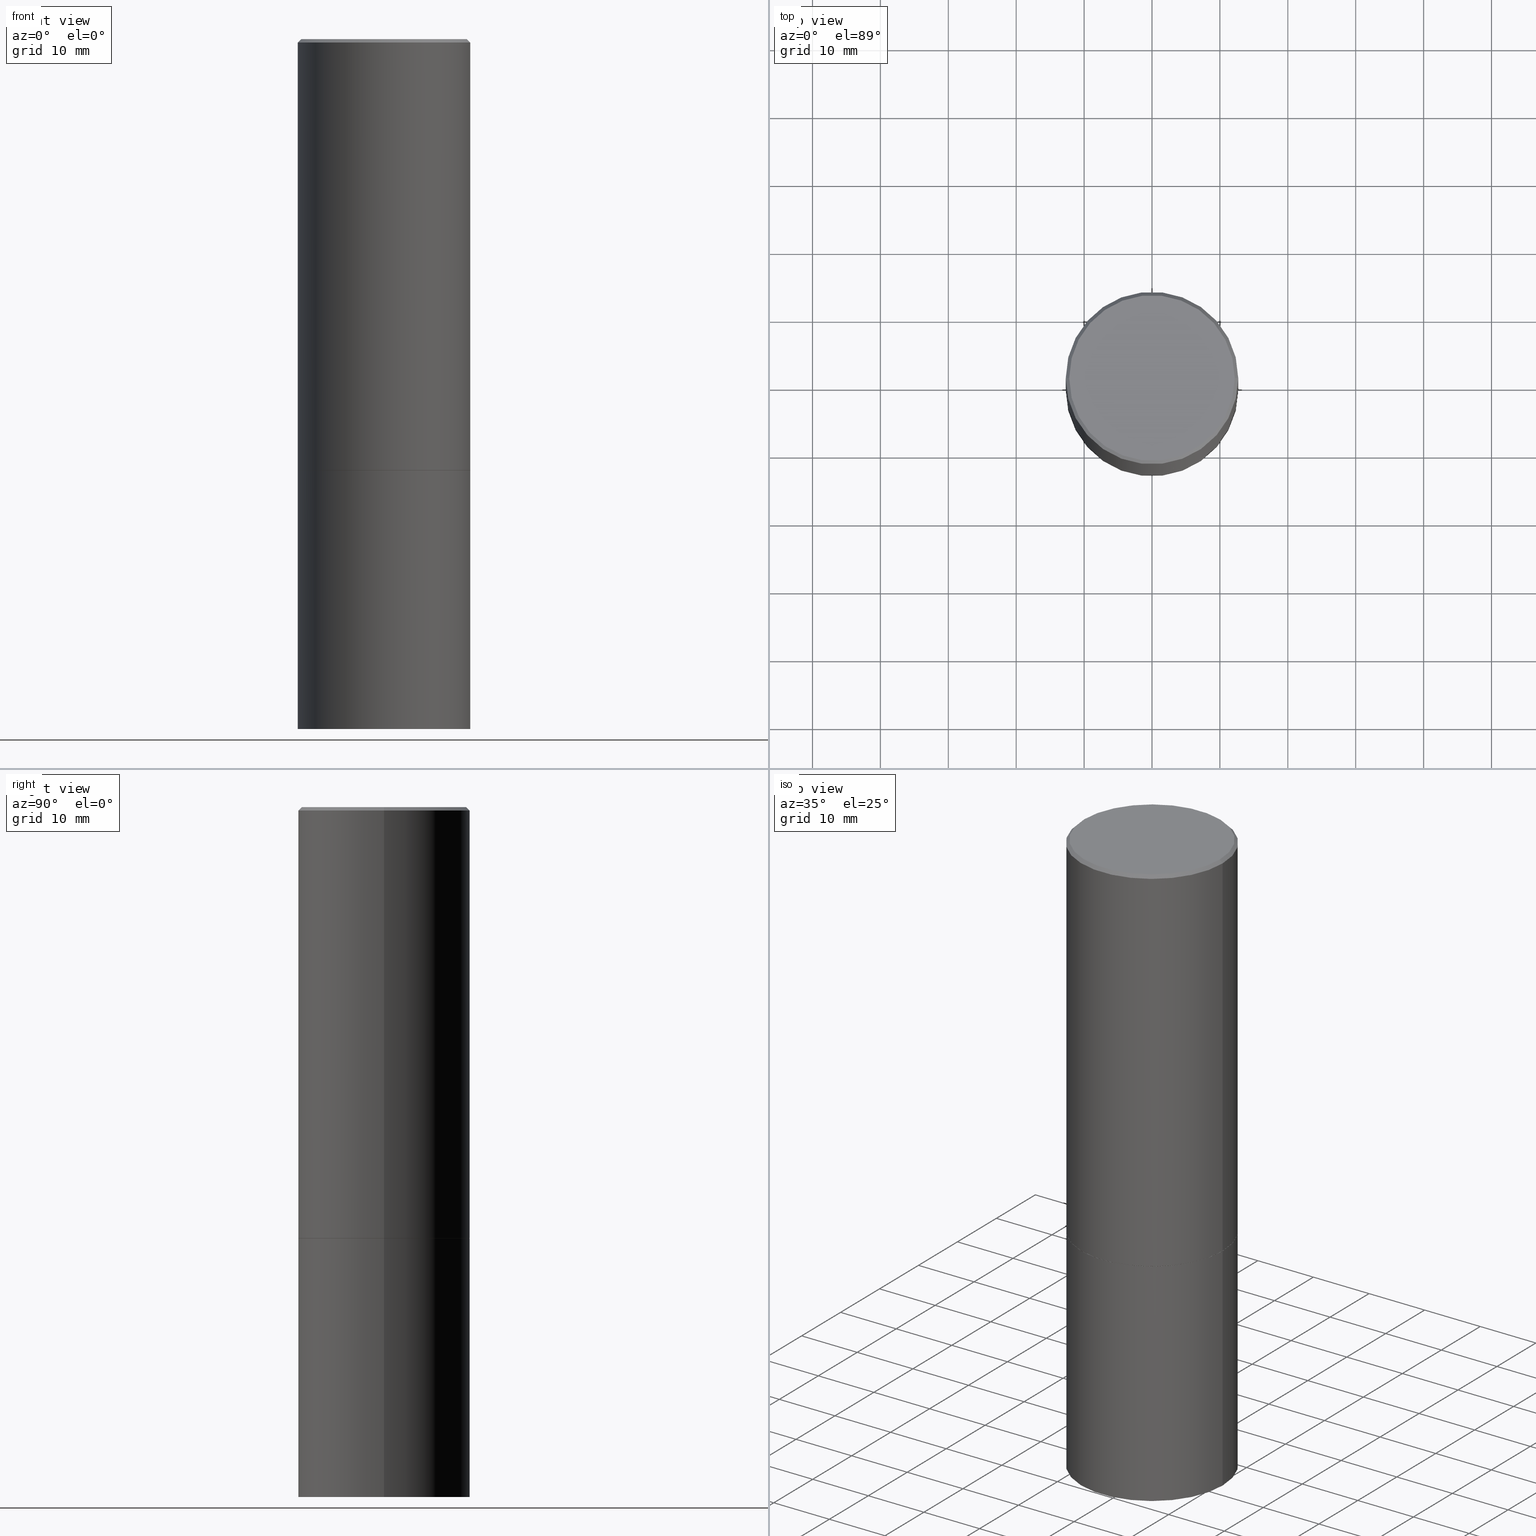
[diagram: canonical four-view strip — front | top / right | iso, engineering-drawing reading convention]
A machine part, canonical four-view strip (front | top / right | iso — engineering-drawing reading convention). The complete STEP part file that produces these views, byte-faithful:
ISO-10303-21;
HEADER;
FILE_DESCRIPTION (( 'STEP AP203' ),
    '1' );
FILE_NAME ('35297.STEP',
    '2024-02-27T18:29:03',
    ( '' ),
    ( '' ),
    'SwSTEP 2.0',
    'SolidWorks 2023',
    '' );
FILE_SCHEMA (( 'CONFIG_CONTROL_DESIGN' ));
ENDSEC;

DATA;
#1 = EDGE_LOOP ( 'NONE', ( #300, #232, #81, #131 ) ) ;
#2 = LINE ( 'NONE', #173, #125 ) ;
#3 = ORIENTED_EDGE ( 'NONE', *, *, #6, .T. ) ;
#4 = CARTESIAN_POINT ( 'NONE',  ( 4.890937612370299433E-31, -6.982962677686328587E-17, -0.02000000000000010797 ) ) ;
#5 = ORIENTED_EDGE ( 'NONE', *, *, #192, .T. ) ;
#6 = EDGE_CURVE ( 'NONE', #331, #206, #324, .T. ) ;
#7 = CARTESIAN_POINT ( 'NONE',  ( 0.4989999999999999991, -1.221320172327331386E-14, -2.500000000000000444 ) ) ;
#8 =( NAMED_UNIT ( * ) SI_UNIT ( $, .STERADIAN. ) SOLID_ANGLE_UNIT ( ) );
#9 = ORIENTED_EDGE ( 'NONE', *, *, #326, .T. ) ;
#10 = AXIS2_PLACEMENT_3D ( 'NONE', #288, #261, #69 ) ;
#11 = VECTOR ( 'NONE', #205, 39.37007874015748143 ) ;
#12 = DIRECTION ( 'NONE',  ( -2.438088387897960049E-29, 3.491481338843145188E-15, 1.000000000000000000 ) ) ;
#13 = APPLICATION_PROTOCOL_DEFINITION ( 'international standard', 'config_control_design', 1994, #71 ) ;
#14 = CARTESIAN_POINT ( 'NONE',  ( 4.890937612370299433E-31, -6.982962677686328587E-17, -0.02000000000000010797 ) ) ;
#15 = CIRCLE ( 'NONE', #107, 0.4999999999999997224 ) ;
#16 = PERSON_AND_ORGANIZATION ( #282, #108 ) ;
#17 = CARTESIAN_POINT ( 'NONE',  ( 0.5000000000000000000, -1.221669320461215371E-14, -2.499000000000000110 ) ) ;
#18 = VERTEX_POINT ( 'NONE', #292 ) ;
#19 = CC_DESIGN_PERSON_AND_ORGANIZATION_ASSIGNMENT ( #134, #327, ( #84 ) ) ;
#20 = AXIS2_PLACEMENT_3D ( 'NONE', #14, #160, #319 ) ;
#21 = CARTESIAN_POINT ( 'NONE',  ( 0.5000000000000000000, -1.222018468595099830E-14, -2.500000000000000000 ) ) ;
#22 = PERSON_AND_ORGANIZATION ( #282, #108 ) ;
#23 = LOCAL_TIME ( 13, 29, 3.000000000000000000, #299 ) ;
#24 = EDGE_LOOP ( 'NONE', ( #60, #183, #365, #341 ) ) ;
#25 = PERSON_AND_ORGANIZATION ( #282, #108 ) ;
#26 = CARTESIAN_POINT ( 'NONE',  ( 4.890937612370299433E-31, -6.982962677686328587E-17, -0.02000000000000010797 ) ) ;
#27 = FACE_OUTER_BOUND ( 'NONE', #114, .T. ) ;
#28 = CARTESIAN_POINT ( 'NONE',  ( 0.4999999999999997224, -3.500078625662627502E-15, -0.02000000000000010797 ) ) ;
#29 = SHAPE_DEFINITION_REPRESENTATION ( #51, #92 ) ;
#30 = CARTESIAN_POINT ( 'NONE',  ( 0.000000000000000000, 0.000000000000000000, 0.000000000000000000 ) ) ;
#31 = CONICAL_SURFACE ( 'NONE', #20, 0.4999999999999997224, 0.7853981633974468357 ) ;
#32 = CC_DESIGN_SECURITY_CLASSIFICATION ( #294, ( #265 ) ) ;
#33 = DIRECTION ( 'NONE',  ( 1.000000000000000000, -6.982962677686266711E-15, 0.000000000000000000 ) ) ;
#34 = DIRECTION ( 'NONE',  ( 1.000000000000000000, -6.982962677686266711E-15, 0.000000000000000000 ) ) ;
#35 = CC_DESIGN_PERSON_AND_ORGANIZATION_ASSIGNMENT ( #285, #136, ( #294 ) ) ;
#36 = ORIENTED_EDGE ( 'NONE', *, *, #351, .T. ) ;
#37 = DIRECTION ( 'NONE',  ( -2.445468806185136597E-29, 3.491481338843145583E-15, 1.000000000000000000 ) ) ;
#38 = DATE_TIME_ROLE ( 'creation_date' ) ;
#39 = LOCAL_TIME ( 13, 29, 3.000000000000000000, #118 ) ;
#40 = FACE_OUTER_BOUND ( 'NONE', #175, .T. ) ;
#41 = ORIENTED_EDGE ( 'NONE', *, *, #130, .T. ) ;
#42 = ADVANCED_FACE ( 'NONE', ( #40 ), #45, .T. ) ;
#43 = DIRECTION ( 'NONE',  ( -1.000000000000000000, 6.982962677686265922E-15, -4.876176775795935793E-29 ) ) ;
#44 = ORIENTED_EDGE ( 'NONE', *, *, #85, .F. ) ;
#45 = CYLINDRICAL_SURFACE ( 'NONE', #10, 0.5000000000000000000 ) ;
#46 = CLOSED_SHELL ( 'NONE', ( #243, #242, #94, #68, #296, #119, #146, #126 ) ) ;
#47 = FACE_OUTER_BOUND ( 'NONE', #88, .T. ) ;
#48 = UNCERTAINTY_MEASURE_WITH_UNIT (LENGTH_MEASURE( 1.000000000000000082E-05 ), #246, 'distance_accuracy_value', 'NONE');
#49 = DIRECTION ( 'NONE',  ( 1.000000000000000000, -6.982962677686265133E-15, 0.000000000000000000 ) ) ;
#50 = COORDINATED_UNIVERSAL_TIME_OFFSET ( 5, 0, .BEHIND. ) ;
#51 = PRODUCT_DEFINITION_SHAPE ( 'NONE', 'NONE',  #84 ) ;
#52 = APPLICATION_CONTEXT ( 'configuration controlled 3d designs of mechanical parts and assemblies' ) ;
#53 = PRODUCT_RELATED_PRODUCT_CATEGORY ( 'detail', '', ( #105 ) ) ;
#54 = ORIENTED_EDGE ( 'NONE', *, *, #340, .F. ) ;
#55 = CALENDAR_DATE ( 2024, 27, 2 ) ;
#56 = CYLINDRICAL_SURFACE ( 'NONE', #215, 0.4999999999999998335 ) ;
#57 = CIRCLE ( 'NONE', #247, 0.4989999999999999991 ) ;
#58 = PERSON_AND_ORGANIZATION_ROLE ( 'design_owner' ) ;
#59 = APPROVAL_DATE_TIME ( #357, #129 ) ;
#60 = ORIENTED_EDGE ( 'NONE', *, *, #166, .F. ) ;
#61 = CARTESIAN_POINT ( 'NONE',  ( -0.4799999999999996492, 3.386736898677836830E-15, 1.280553747027767124E-17 ) ) ;
#62 = EDGE_CURVE ( 'NONE', #310, #18, #147, .T. ) ;
#63 = APPROVAL_ROLE ( '' ) ;
#64 = CARTESIAN_POINT ( 'NONE',  ( -0.4989999999999999991, -5.177796641316744197E-15, -2.500000000000000444 ) ) ;
#65 = AXIS2_PLACEMENT_3D ( 'NONE', #26, #223, #329 ) ;
#66 = AXIS2_PLACEMENT_3D ( 'NONE', #262, #127, #266 ) ;
#67 = CC_DESIGN_PERSON_AND_ORGANIZATION_ASSIGNMENT ( #313, #79, ( #265 ) ) ;
#68 = ADVANCED_FACE ( 'NONE', ( #286 ), #31, .T. ) ;
#69 = DIRECTION ( 'NONE',  ( 1.000000000000000000, -6.982962677686266711E-15, 4.876176775795935793E-29 ) ) ;
#70 = VERTEX_POINT ( 'NONE', #17 ) ;
#71 = APPLICATION_CONTEXT ( 'configuration controlled 3d designs of mechanical parts and assemblies' ) ;
#72 = AXIS2_PLACEMENT_3D ( 'NONE', #276, #347, #353 ) ;
#73 = DIRECTION ( 'NONE',  ( -2.445468806185136597E-29, 3.491481338843145583E-15, 1.000000000000000000 ) ) ;
#74 = APPROVAL_DATE_TIME ( #250, #293 ) ;
#75 = ORIENTED_EDGE ( 'NONE', *, *, #6, .F. ) ;
#76 = CALENDAR_DATE ( 2024, 27, 2 ) ;
#77 = CARTESIAN_POINT ( 'NONE',  ( 9.781875224740546387E-29, -1.396592535537258233E-14, -4.000000000000000000 ) ) ;
#78 = VERTEX_POINT ( 'NONE', #236 ) ;
#79 = PERSON_AND_ORGANIZATION_ROLE ( 'design_supplier' ) ;
#80 = CIRCLE ( 'NONE', #297, 0.4999999999999997224 ) ;
#81 = ORIENTED_EDGE ( 'NONE', *, *, #145, .F. ) ;
#82 = CIRCLE ( 'NONE', #273, 0.5000000000000000000 ) ;
#83 = PLANE ( 'NONE',  #180 ) ;
#84 = PRODUCT_DEFINITION ( 'UNKNOWN', '', #265, #238 ) ;
#85 = EDGE_CURVE ( 'NONE', #70, #78, #207, .T. ) ;
#86 = FACE_OUTER_BOUND ( 'NONE', #248, .T. ) ;
#87 = APPROVAL_ROLE ( '' ) ;
#88 = EDGE_LOOP ( 'NONE', ( #316, #154 ) ) ;
#89 = CIRCLE ( 'NONE', #195, 0.4799999999999996492 ) ;
#90 = LOCAL_TIME ( 13, 29, 3.000000000000000000, #50 ) ;
#91 = CARTESIAN_POINT ( 'NONE',  ( -0.5000000000000000000, 3.552713678800500929E-15, -2.459467545127452891E-29 ) ) ;
#92 = ADVANCED_BREP_SHAPE_REPRESENTATION ( '35297', ( #307, #308, #255 ), #219 ) ;
#93 = DIRECTION ( 'NONE',  ( 1.000000000000000000, -6.982962677686269077E-15, 0.000000000000000000 ) ) ;
#94 = ADVANCED_FACE ( 'NONE', ( #271 ), #226, .T. ) ;
#95 = CLOSED_SHELL ( 'NONE', ( #42, #142, #155, #191 ) ) ;
#96 = CARTESIAN_POINT ( 'NONE',  ( 6.113672015462842613E-29, -8.728703347107864943E-15, -2.500000000000000000 ) ) ;
#97 = APPROVAL_STATUS ( 'not_yet_approved' ) ;
#98 = DIRECTION ( 'NONE',  ( 1.000000000000000000, -6.982962677686267499E-15, 4.876176775795936353E-29 ) ) ;
#99 = CC_DESIGN_PERSON_AND_ORGANIZATION_ASSIGNMENT ( #22, #58, ( #105 ) ) ;
#100 = ORIENTED_EDGE ( 'NONE', *, *, #192, .F. ) ;
#101 = CARTESIAN_POINT ( 'NONE',  ( 6.113672015462842613E-29, -8.728703347107866520E-15, -2.500000000000000444 ) ) ;
#102 = CONICAL_SURFACE ( 'NONE', #121, 0.4989999999999999991, 0.7853981633972775267 ) ;
#103 = DIRECTION ( 'NONE',  ( -2.445468806185136597E-29, 3.491481338843145583E-15, 1.000000000000000000 ) ) ;
#104 = CC_DESIGN_DATE_AND_TIME_ASSIGNMENT ( #252, #213, ( #294 ) ) ;
#105 = PRODUCT ( '35297', '35297', '', ( #133 ) ) ;
#106 = DIRECTION ( 'NONE',  ( 1.000000000000000000, 0.000000000000000000, 0.000000000000000000 ) ) ;
#107 = AXIS2_PLACEMENT_3D ( 'NONE', #4, #289, #263 ) ;
#108 = ORGANIZATION ( 'UNSPECIFIED', 'UNSPECIFIED', '' ) ;
#109 =( LENGTH_UNIT ( ) NAMED_UNIT ( * ) SI_UNIT ( $, .METRE. ) );
#110 = DIRECTION ( 'NONE',  ( 1.000000000000000000, -6.982962677686266711E-15, 0.000000000000000000 ) ) ;
#111 = EDGE_CURVE ( 'NONE', #206, #264, #143, .T. ) ;
#112 = ORIENTED_EDGE ( 'NONE', *, *, #153, .F. ) ;
#113 = CARTESIAN_POINT ( 'NONE',  ( 6.113672015462842613E-29, -8.728703347107864943E-15, -2.500000000000000000 ) ) ;
#114 = EDGE_LOOP ( 'NONE', ( #245, #211, #354, #348 ) ) ;
#115 = ORIENTED_EDGE ( 'NONE', *, *, #111, .T. ) ;
#116 = CIRCLE ( 'NONE', #304, 0.5000000000000000000 ) ;
#117 = AXIS2_PLACEMENT_3D ( 'NONE', #96, #251, #171 ) ;
#118 = COORDINATED_UNIVERSAL_TIME_OFFSET ( 5, 0, .BEHIND. ) ;
#119 = ADVANCED_FACE ( 'NONE', ( #254 ), #253, .T. ) ;
#120 = LINE ( 'NONE', #221, #356 ) ;
#121 = AXIS2_PLACEMENT_3D ( 'NONE', #101, #37, #34 ) ;
#122 = SECURITY_CLASSIFICATION_LEVEL ( 'unclassified' ) ;
#123 = ORIENTED_EDGE ( 'NONE', *, *, #178, .T. ) ;
#124 = AXIS2_PLACEMENT_3D ( 'NONE', #270, #272, #110 ) ;
#125 = VECTOR ( 'NONE', #283, 39.37007874015748143 ) ;
#126 = ADVANCED_FACE ( 'NONE', ( #47 ), #159, .F. ) ;
#127 = DIRECTION ( 'NONE',  ( -2.445468806185136597E-29, 3.491481338843145583E-15, 1.000000000000000000 ) ) ;
#128 = EDGE_LOOP ( 'NONE', ( #100, #112 ) ) ;
#129 = APPROVAL ( #345, 'UNSPECIFIED' ) ;
#130 = EDGE_CURVE ( 'NONE', #209, #333, #15, .T. ) ;
#131 = ORIENTED_EDGE ( 'NONE', *, *, #208, .F. ) ;
#132 = DIRECTION ( 'NONE',  ( 2.438088387897960049E-29, -3.491481338843145188E-15, -1.000000000000000000 ) ) ;
#133 = MECHANICAL_CONTEXT ( 'NONE', #71, 'mechanical' ) ;
#134 = PERSON_AND_ORGANIZATION ( #282, #108 ) ;
#135 = ORIENTED_EDGE ( 'NONE', *, *, #190, .F. ) ;
#136 = PERSON_AND_ORGANIZATION_ROLE ( 'classification_officer' ) ;
#137 = APPROVAL_STATUS ( 'not_yet_approved' ) ;
#138 = DIRECTION ( 'NONE',  ( -2.445468806185136877E-29, 3.491481338843145188E-15, 1.000000000000000000 ) ) ;
#139 = LENGTH_MEASURE_WITH_UNIT ( LENGTH_MEASURE( 0.02539999999999999897 ), #109 );
#140 = AXIS2_PLACEMENT_3D ( 'NONE', #350, #239, #212 ) ;
#141 = FACE_OUTER_BOUND ( 'NONE', #1, .T. ) ;
#142 = ADVANCED_FACE ( 'NONE', ( #295 ), #337, .T. ) ;
#143 = LINE ( 'NONE', #91, #355 ) ;
#144 = PERSON_AND_ORGANIZATION ( #282, #108 ) ;
#145 = EDGE_CURVE ( 'NONE', #333, #209, #80, .T. ) ;
#146 = ADVANCED_FACE ( 'NONE', ( #237 ), #83, .F. ) ;
#147 = CIRCLE ( 'NONE', #287, 0.4799999999999996492 ) ;
#148 = CC_DESIGN_APPROVAL ( #293, ( #84 ) ) ;
#149 = ORIENTED_EDGE ( 'NONE', *, *, #62, .F. ) ;
#150 = DIRECTION ( 'NONE',  ( -0.7071067811864267805, 7.493145998869918709E-15, 0.7071067811866682540 ) ) ;
#151 = LINE ( 'NONE', #177, #156 ) ;
#152 = AXIS2_PLACEMENT_3D ( 'NONE', #334, #73, #231 ) ;
#153 = EDGE_CURVE ( 'NONE', #249, #343, #349, .T. ) ;
#154 = ORIENTED_EDGE ( 'NONE', *, *, #166, .T. ) ;
#155 = ADVANCED_FACE ( 'NONE', ( #86 ), #182, .F. ) ;
#156 = VECTOR ( 'NONE', #150, 39.37007874015748143 ) ;
#157 = DIRECTION ( 'NONE',  ( 2.438088387897960049E-29, -3.491481338843145188E-15, -1.000000000000000000 ) ) ;
#158 = DIRECTION ( 'NONE',  ( 1.000000000000000000, -6.982962677686265922E-15, 4.876176775795935793E-29 ) ) ;
#159 = PLANE ( 'NONE',  #362 ) ;
#160 = DIRECTION ( 'NONE',  ( 2.445468806185136597E-29, -3.491481338843145583E-15, -1.000000000000000000 ) ) ;
#161 = DIRECTION ( 'NONE',  ( -1.000000000000000000, 6.982962677686265922E-15, -4.876176775795935793E-29 ) ) ;
#162 = ORIENTED_EDGE ( 'NONE', *, *, #130, .F. ) ;
#163 = LOCAL_TIME ( 13, 29, 3.000000000000000000, #172 ) ;
#164 = DIRECTION ( 'NONE',  ( -2.445468806185136597E-29, 3.491481338843145583E-15, 1.000000000000000000 ) ) ;
#165 = DIRECTION ( 'NONE',  ( -2.445468806185136877E-29, 3.491481338843145188E-15, 1.000000000000000000 ) ) ;
#166 = EDGE_CURVE ( 'NONE', #18, #310, #89, .T. ) ;
#167 = APPROVAL ( #97, 'UNSPECIFIED' ) ;
#168 = CARTESIAN_POINT ( 'NONE',  ( 0.4989999999999999991, -1.221320172327331386E-14, -2.500000000000000444 ) ) ;
#169 = CC_DESIGN_APPROVAL ( #167, ( #294 ) ) ;
#170 = CARTESIAN_POINT ( 'NONE',  ( 0.000000000000000000, 0.000000000000000000, 0.000000000000000000 ) ) ;
#171 = DIRECTION ( 'NONE',  ( 1.000000000000000000, -6.982962677686269077E-15, 0.000000000000000000 ) ) ;
#172 = COORDINATED_UNIVERSAL_TIME_OFFSET ( 5, 0, .BEHIND. ) ;
#173 = CARTESIAN_POINT ( 'NONE',  ( -0.4999999999999997224, 3.421651712066268085E-15, -0.02000000000000010797 ) ) ;
#174 = DIRECTION ( 'NONE',  ( -2.445468806185136597E-29, 3.491481338843145583E-15, 1.000000000000000000 ) ) ;
#175 = EDGE_LOOP ( 'NONE', ( #3, #115, #135, #257 ) ) ;
#176 = DIRECTION ( 'NONE',  ( 1.000000000000000000, -6.982962677686267499E-15, 4.876036955247132767E-29 ) ) ;
#177 = CARTESIAN_POINT ( 'NONE',  ( -0.4989999999999999991, -5.183095095664967388E-15, -2.500000000000000444 ) ) ;
#178 = EDGE_CURVE ( 'NONE', #78, #70, #116, .T. ) ;
#179 = EDGE_CURVE ( 'NONE', #206, #331, #202, .T. ) ;
#180 = AXIS2_PLACEMENT_3D ( 'NONE', #317, #12, #158 ) ;
#181 = EDGE_CURVE ( 'NONE', #264, #241, #82, .T. ) ;
#182 = PLANE ( 'NONE',  #233 ) ;
#183 = ORIENTED_EDGE ( 'NONE', *, *, #284, .T. ) ;
#184 = APPROVAL_PERSON_ORGANIZATION ( #144, #167, #63 ) ;
#185 = DIRECTION ( 'NONE',  ( 1.000000000000000000, -6.982962677686267499E-15, 4.876036955247132767E-29 ) ) ;
#186 = CARTESIAN_POINT ( 'NONE',  ( 0.5000000000000000000, -3.491481338843133355E-15, 2.438088387897967896E-29 ) ) ;
#187 = CARTESIAN_POINT ( 'NONE',  ( -3.131554243005659264E-46, 4.471029511141341874E-32, 1.280553747030123384E-17 ) ) ;
#188 = AXIS2_PLACEMENT_3D ( 'NONE', #363, #174, #33 ) ;
#189 = APPROVAL_PERSON_ORGANIZATION ( #222, #129, #214 ) ;
#190 = EDGE_CURVE ( 'NONE', #241, #264, #220, .T. ) ;
#191 = ADVANCED_FACE ( 'NONE', ( #27 ), #230, .T. ) ;
#192 = EDGE_CURVE ( 'NONE', #343, #249, #57, .T. ) ;
#193 = DIRECTION ( 'NONE',  ( 1.000000000000000000, -6.982962677686266711E-15, 0.000000000000000000 ) ) ;
#194 = CALENDAR_DATE ( 2024, 27, 2 ) ;
#195 = AXIS2_PLACEMENT_3D ( 'NONE', #187, #217, #185 ) ;
#196 = DATE_AND_TIME ( #244, #23 ) ;
#197 = DATE_AND_TIME ( #55, #309 ) ;
#198 = LINE ( 'NONE', #366, #11 ) ;
#199 = LINE ( 'NONE', #168, #203 ) ;
#200 = COORDINATED_UNIVERSAL_TIME_OFFSET ( 5, 0, .BEHIND. ) ;
#201 = APPLICATION_PROTOCOL_DEFINITION ( 'international standard', 'config_control_design', 1994, #52 ) ;
#202 = CIRCLE ( 'NONE', #227, 0.5000000000000000000 ) ;
#203 = VECTOR ( 'NONE', #312, 39.37007874015748143 ) ;
#204 = EDGE_CURVE ( 'NONE', #331, #241, #240, .T. ) ;
#205 = DIRECTION ( 'NONE',  ( 0.7071067811865464625, -7.319954787623252890E-15, -0.7071067811865485719 ) ) ;
#206 = VERTEX_POINT ( 'NONE', #352 ) ;
#207 = CIRCLE ( 'NONE', #72, 0.5000000000000000000 ) ;
#208 = EDGE_CURVE ( 'NONE', #70, #333, #277, .T. ) ;
#209 = VERTEX_POINT ( 'NONE', #278 ) ;
#210 = DIRECTION ( 'NONE',  ( 1.000000000000000000, -6.982962677686266711E-15, 0.000000000000000000 ) ) ;
#211 = ORIENTED_EDGE ( 'NONE', *, *, #179, .T. ) ;
#212 = DIRECTION ( 'NONE',  ( -1.000000000000000000, 6.982962677686265922E-15, -4.876176775795935793E-29 ) ) ;
#213 = DATE_TIME_ROLE ( 'classification_date' ) ;
#214 = APPROVAL_ROLE ( '' ) ;
#215 = AXIS2_PLACEMENT_3D ( 'NONE', #170, #281, #98 ) ;
#216 = CARTESIAN_POINT ( 'NONE',  ( 3.351822085289405181E-15, 0.4799999999999996492, -1.669508273909558064E-15 ) ) ;
#217 = DIRECTION ( 'NONE',  ( -2.445468806185136597E-29, 3.491481338843145583E-15, 1.000000000000000000 ) ) ;
#218 = ORIENTED_EDGE ( 'NONE', *, *, #351, .F. ) ;
#219 =( GEOMETRIC_REPRESENTATION_CONTEXT ( 3 ) GLOBAL_UNCERTAINTY_ASSIGNED_CONTEXT ( ( #48 ) ) GLOBAL_UNIT_ASSIGNED_CONTEXT ( ( #246, #346, #8 ) ) REPRESENTATION_CONTEXT ( 'NONE', 'WORKASPACE' ) );
#220 = CIRCLE ( 'NONE', #117, 0.5000000000000000000 ) ;
#221 = CARTESIAN_POINT ( 'NONE',  ( -0.4999999999999998335, 3.552713678800499746E-15, -2.459467545127452330E-29 ) ) ;
#222 = PERSON_AND_ORGANIZATION ( #282, #108 ) ;
#223 = DIRECTION ( 'NONE',  ( 2.445468806185136597E-29, -3.491481338843145583E-15, -1.000000000000000000 ) ) ;
#224 = CARTESIAN_POINT ( 'NONE',  ( -3.131554243005659264E-46, 4.471029511141341874E-32, 1.280553747030123384E-17 ) ) ;
#225 = ORIENTED_EDGE ( 'NONE', *, *, #274, .F. ) ;
#226 = CONICAL_SURFACE ( 'NONE', #65, 0.4999999999999997224, 0.7853981633974468357 ) ;
#227 = AXIS2_PLACEMENT_3D ( 'NONE', #77, #291, #344 ) ;
#228 = CYLINDRICAL_SURFACE ( 'NONE', #325, 0.4999999999999998335 ) ;
#229 = ORIENTED_EDGE ( 'NONE', *, *, #153, .T. ) ;
#230 = CYLINDRICAL_SURFACE ( 'NONE', #66, 0.5000000000000000000 ) ;
#231 = DIRECTION ( 'NONE',  ( 1.000000000000000000, -6.982962677686266711E-15, 0.000000000000000000 ) ) ;
#232 = ORIENTED_EDGE ( 'NONE', *, *, #340, .T. ) ;
#233 = AXIS2_PLACEMENT_3D ( 'NONE', #311, #132, #161 ) ;
#234 = EDGE_LOOP ( 'NONE', ( #5, #339, #44, #218 ) ) ;
#235 = CARTESIAN_POINT ( 'NONE',  ( 6.111226546656657010E-29, -8.725211865769021935E-15, -2.499000000000000110 ) ) ;
#236 = CARTESIAN_POINT ( 'NONE',  ( -0.5000000000000000000, -8.448070674724411945E-16, -2.499000000000000110 ) ) ;
#237 = FACE_OUTER_BOUND ( 'NONE', #128, .T. ) ;
#238 = DESIGN_CONTEXT ( 'detailed design', #52, 'design' ) ;
#239 = DIRECTION ( 'NONE',  ( 2.438088387897960049E-29, -3.491481338843145188E-15, -1.000000000000000000 ) ) ;
#240 = LINE ( 'NONE', #186, #338 ) ;
#241 = VERTEX_POINT ( 'NONE', #21 ) ;
#242 = ADVANCED_FACE ( 'NONE', ( #141 ), #56, .T. ) ;
#243 = ADVANCED_FACE ( 'NONE', ( #328 ), #102, .T. ) ;
#244 = CALENDAR_DATE ( 2024, 27, 2 ) ;
#245 = ORIENTED_EDGE ( 'NONE', *, *, #111, .F. ) ;
#246 =( CONVERSION_BASED_UNIT ( 'INCH', #139 ) LENGTH_UNIT ( ) NAMED_UNIT ( #269 ) );
#247 = AXIS2_PLACEMENT_3D ( 'NONE', #301, #320, #193 ) ;
#248 = EDGE_LOOP ( 'NONE', ( #290, #306 ) ) ;
#249 = VERTEX_POINT ( 'NONE', #64 ) ;
#250 = DATE_AND_TIME ( #194, #39 ) ;
#251 = DIRECTION ( 'NONE',  ( -2.445468806185136597E-29, 3.491481338843145583E-15, 1.000000000000000000 ) ) ;
#252 = DATE_AND_TIME ( #364, #90 ) ;
#253 = CONICAL_SURFACE ( 'NONE', #188, 0.4989999999999999991, 0.7853981633972775267 ) ;
#254 = FACE_OUTER_BOUND ( 'NONE', #315, .T. ) ;
#255 = AXIS2_PLACEMENT_3D ( 'NONE', #360, #342, #106 ) ;
#256 = DIRECTION ( 'NONE',  ( -2.445468806185136877E-29, 3.491481338843145188E-15, 1.000000000000000000 ) ) ;
#257 = ORIENTED_EDGE ( 'NONE', *, *, #204, .F. ) ;
#258 = CC_DESIGN_DATE_AND_TIME_ASSIGNMENT ( #197, #38, ( #84 ) ) ;
#259 = CARTESIAN_POINT ( 'NONE',  ( -0.5000000000000000000, -7.794600672439723496E-15, -2.500000000000000000 ) ) ;
#260 = DIRECTION ( 'NONE',  ( 1.000000000000000000, -6.982962677686267499E-15, 4.876176775795936353E-29 ) ) ;
#261 = DIRECTION ( 'NONE',  ( -2.445468806185136597E-29, 3.491481338843145583E-15, 1.000000000000000000 ) ) ;
#262 = CARTESIAN_POINT ( 'NONE',  ( 0.000000000000000000, 0.000000000000000000, 0.000000000000000000 ) ) ;
#263 = DIRECTION ( 'NONE',  ( 1.000000000000000000, -6.982962677686266711E-15, 0.000000000000000000 ) ) ;
#264 = VERTEX_POINT ( 'NONE', #259 ) ;
#265 = PRODUCT_DEFINITION_FORMATION_WITH_SPECIFIED_SOURCE ( 'ANY', '', #105, .NOT_KNOWN. ) ;
#266 = DIRECTION ( 'NONE',  ( 1.000000000000000000, -6.982962677686266711E-15, 4.876176775795935793E-29 ) ) ;
#267 = CARTESIAN_POINT ( 'NONE',  ( 4.890937612370299433E-31, -6.982962677686328587E-17, -0.02000000000000010797 ) ) ;
#268 = CC_DESIGN_PERSON_AND_ORGANIZATION_ASSIGNMENT ( #25, #359, ( #265 ) ) ;
#269 = DIMENSIONAL_EXPONENTS ( 1.000000000000000000, 0.000000000000000000, 0.000000000000000000, 0.000000000000000000, 0.000000000000000000, 0.000000000000000000, 0.000000000000000000 ) ;
#270 = CARTESIAN_POINT ( 'NONE',  ( 6.113672015462842613E-29, -8.728703347107866520E-15, -2.500000000000000444 ) ) ;
#271 = FACE_OUTER_BOUND ( 'NONE', #24, .T. ) ;
#272 = DIRECTION ( 'NONE',  ( -2.445468806185136597E-29, 3.491481338843145583E-15, 1.000000000000000000 ) ) ;
#273 = AXIS2_PLACEMENT_3D ( 'NONE', #113, #323, #93 ) ;
#274 = EDGE_CURVE ( 'NONE', #249, #78, #151, .T. ) ;
#275 = DIRECTION ( 'NONE',  ( -2.445468806185136597E-29, 3.491481338843145583E-15, 1.000000000000000000 ) ) ;
#276 = CARTESIAN_POINT ( 'NONE',  ( 6.111226546656657010E-29, -8.725211865769021935E-15, -2.499000000000000110 ) ) ;
#277 = LINE ( 'NONE', #318, #279 ) ;
#278 = CARTESIAN_POINT ( 'NONE',  ( -0.4999999999999997224, 3.421651712066268085E-15, -0.02000000000000010797 ) ) ;
#279 = VECTOR ( 'NONE', #138, 39.37007874015748143 ) ;
#280 = APPROVAL_DATE_TIME ( #196, #167 ) ;
#281 = DIRECTION ( 'NONE',  ( -2.445468806185136597E-29, 3.491481338843145583E-15, 1.000000000000000000 ) ) ;
#282 = PERSON ( 'UNSPECIFIED', 'UNSPECIFIED', 'UNSPECIFIED', ('UNSPECIFIED'), ('UNSPECIFIED'), ('UNSPECIFIED') ) ;
#283 = DIRECTION ( 'NONE',  ( -0.7071067811865464625, 2.468850131082245622E-15, -0.7071067811865485719 ) ) ;
#284 = EDGE_CURVE ( 'NONE', #18, #333, #198, .T. ) ;
#285 = PERSON_AND_ORGANIZATION ( #282, #108 ) ;
#286 = FACE_OUTER_BOUND ( 'NONE', #302, .T. ) ;
#287 = AXIS2_PLACEMENT_3D ( 'NONE', #224, #103, #176 ) ;
#288 = CARTESIAN_POINT ( 'NONE',  ( 0.000000000000000000, 0.000000000000000000, 0.000000000000000000 ) ) ;
#289 = DIRECTION ( 'NONE',  ( -2.445468806185136597E-29, 3.491481338843145583E-15, 1.000000000000000000 ) ) ;
#290 = ORIENTED_EDGE ( 'NONE', *, *, #190, .T. ) ;
#291 = DIRECTION ( 'NONE',  ( -2.445468806185136597E-29, 3.491481338843145583E-15, 1.000000000000000000 ) ) ;
#292 = CARTESIAN_POINT ( 'NONE',  ( 0.4799999999999996492, -3.396558832296480127E-15, 1.280553747032483033E-17 ) ) ;
#293 = APPROVAL ( #137, 'UNSPECIFIED' ) ;
#294 = SECURITY_CLASSIFICATION ( '', '', #122 ) ;
#295 = FACE_OUTER_BOUND ( 'NONE', #321, .T. ) ;
#296 = ADVANCED_FACE ( 'NONE', ( #303 ), #228, .T. ) ;
#297 = AXIS2_PLACEMENT_3D ( 'NONE', #267, #275, #210 ) ;
#298 = APPROVAL_PERSON_ORGANIZATION ( #16, #293, #87 ) ;
#299 = COORDINATED_UNIVERSAL_TIME_OFFSET ( 5, 0, .BEHIND. ) ;
#300 = ORIENTED_EDGE ( 'NONE', *, *, #85, .T. ) ;
#301 = CARTESIAN_POINT ( 'NONE',  ( 6.113672015462842613E-29, -8.728703347107866520E-15, -2.500000000000000444 ) ) ;
#302 = EDGE_LOOP ( 'NONE', ( #335, #149, #9, #41 ) ) ;
#303 = FACE_OUTER_BOUND ( 'NONE', #314, .T. ) ;
#304 = AXIS2_PLACEMENT_3D ( 'NONE', #235, #164, #49 ) ;
#305 = CC_DESIGN_APPROVAL ( #129, ( #265 ) ) ;
#306 = ORIENTED_EDGE ( 'NONE', *, *, #181, .T. ) ;
#307 = MANIFOLD_SOLID_BREP ( 'Body-Move/Copy2[1]', #95 ) ;
#308 = MANIFOLD_SOLID_BREP ( 'Body-Move/Copy2[2]', #46 ) ;
#309 = LOCAL_TIME ( 13, 29, 3.000000000000000000, #200 ) ;
#310 = VERTEX_POINT ( 'NONE', #61 ) ;
#311 = CARTESIAN_POINT ( 'NONE',  ( 3.491481338843194098E-15, 0.4999999999999912292, -2.500000000000001776 ) ) ;
#312 = DIRECTION ( 'NONE',  ( 0.7071067811864267805, -2.468850131080992517E-15, 0.7071067811866682540 ) ) ;
#313 = PERSON_AND_ORGANIZATION ( #282, #108 ) ;
#314 = EDGE_LOOP ( 'NONE', ( #54, #123, #336, #162 ) ) ;
#315 = EDGE_LOOP ( 'NONE', ( #225, #229, #36, #322 ) ) ;
#316 = ORIENTED_EDGE ( 'NONE', *, *, #62, .T. ) ;
#317 = CARTESIAN_POINT ( 'NONE',  ( 6.113672015462842613E-29, -8.728703347107864943E-15, -2.500000000000000000 ) ) ;
#318 = CARTESIAN_POINT ( 'NONE',  ( 0.4999999999999998335, -3.491481338843132566E-15, 2.438088387897967336E-29 ) ) ;
#319 = DIRECTION ( 'NONE',  ( -1.000000000000000000, 6.982962677686266711E-15, 0.000000000000000000 ) ) ;
#320 = DIRECTION ( 'NONE',  ( -2.445468806185136597E-29, 3.491481338843145583E-15, 1.000000000000000000 ) ) ;
#321 = EDGE_LOOP ( 'NONE', ( #75, #358 ) ) ;
#322 = ORIENTED_EDGE ( 'NONE', *, *, #178, .F. ) ;
#323 = DIRECTION ( 'NONE',  ( -2.445468806185136597E-29, 3.491481338843145583E-15, 1.000000000000000000 ) ) ;
#324 = CIRCLE ( 'NONE', #152, 0.5000000000000000000 ) ;
#325 = AXIS2_PLACEMENT_3D ( 'NONE', #30, #332, #260 ) ;
#326 = EDGE_CURVE ( 'NONE', #310, #209, #2, .T. ) ;
#327 = PERSON_AND_ORGANIZATION_ROLE ( 'creator' ) ;
#328 = FACE_OUTER_BOUND ( 'NONE', #234, .T. ) ;
#329 = DIRECTION ( 'NONE',  ( -1.000000000000000000, 6.982962677686266711E-15, 0.000000000000000000 ) ) ;
#330 = DIRECTION ( 'NONE',  ( -2.445468806185136877E-29, 3.491481338843145188E-15, 1.000000000000000000 ) ) ;
#331 = VERTEX_POINT ( 'NONE', #361 ) ;
#332 = DIRECTION ( 'NONE',  ( -2.445468806185136597E-29, 3.491481338843145583E-15, 1.000000000000000000 ) ) ;
#333 = VERTEX_POINT ( 'NONE', #28 ) ;
#334 = CARTESIAN_POINT ( 'NONE',  ( 9.781875224740546387E-29, -1.396592535537258233E-14, -4.000000000000000000 ) ) ;
#335 = ORIENTED_EDGE ( 'NONE', *, *, #284, .F. ) ;
#336 = ORIENTED_EDGE ( 'NONE', *, *, #208, .T. ) ;
#337 = PLANE ( 'NONE',  #140 ) ;
#338 = VECTOR ( 'NONE', #165, 39.37007874015748143 ) ;
#339 = ORIENTED_EDGE ( 'NONE', *, *, #274, .T. ) ;
#340 = EDGE_CURVE ( 'NONE', #78, #209, #120, .T. ) ;
#341 = ORIENTED_EDGE ( 'NONE', *, *, #326, .F. ) ;
#342 = DIRECTION ( 'NONE',  ( 0.000000000000000000, 0.000000000000000000, 1.000000000000000000 ) ) ;
#343 = VERTEX_POINT ( 'NONE', #7 ) ;
#344 = DIRECTION ( 'NONE',  ( 1.000000000000000000, -6.982962677686266711E-15, 0.000000000000000000 ) ) ;
#345 = APPROVAL_STATUS ( 'not_yet_approved' ) ;
#346 =( NAMED_UNIT ( * ) PLANE_ANGLE_UNIT ( ) SI_UNIT ( $, .RADIAN. ) );
#347 = DIRECTION ( 'NONE',  ( -2.445468806185136597E-29, 3.491481338843145583E-15, 1.000000000000000000 ) ) ;
#348 = ORIENTED_EDGE ( 'NONE', *, *, #181, .F. ) ;
#349 = CIRCLE ( 'NONE', #124, 0.4989999999999999991 ) ;
#350 = CARTESIAN_POINT ( 'NONE',  ( 3.491481338843230780E-15, 0.4999999999999860667, -4.000000000000001776 ) ) ;
#351 = EDGE_CURVE ( 'NONE', #343, #70, #199, .T. ) ;
#352 = CARTESIAN_POINT ( 'NONE',  ( -0.5000000000000000000, -7.794600672439723496E-15, -4.000000000000000000 ) ) ;
#353 = DIRECTION ( 'NONE',  ( 1.000000000000000000, -6.982962677686265133E-15, 0.000000000000000000 ) ) ;
#354 = ORIENTED_EDGE ( 'NONE', *, *, #204, .T. ) ;
#355 = VECTOR ( 'NONE', #330, 39.37007874015748143 ) ;
#356 = VECTOR ( 'NONE', #256, 39.37007874015748143 ) ;
#357 = DATE_AND_TIME ( #76, #163 ) ;
#358 = ORIENTED_EDGE ( 'NONE', *, *, #179, .F. ) ;
#359 = PERSON_AND_ORGANIZATION_ROLE ( 'creator' ) ;
#360 = CARTESIAN_POINT ( 'NONE',  ( 0.000000000000000000, 0.000000000000000000, 0.000000000000000000 ) ) ;
#361 = CARTESIAN_POINT ( 'NONE',  ( 0.5000000000000000000, -1.745740669421571411E-14, -4.000000000000000000 ) ) ;
#362 = AXIS2_PLACEMENT_3D ( 'NONE', #216, #157, #43 ) ;
#363 = CARTESIAN_POINT ( 'NONE',  ( 6.113672015462842613E-29, -8.728703347107866520E-15, -2.500000000000000444 ) ) ;
#364 = CALENDAR_DATE ( 2024, 27, 2 ) ;
#365 = ORIENTED_EDGE ( 'NONE', *, *, #145, .T. ) ;
#366 = CARTESIAN_POINT ( 'NONE',  ( 0.4999999999999997224, -3.500078625662627502E-15, -0.02000000000000010797 ) ) ;
ENDSEC;
END-ISO-10303-21;
